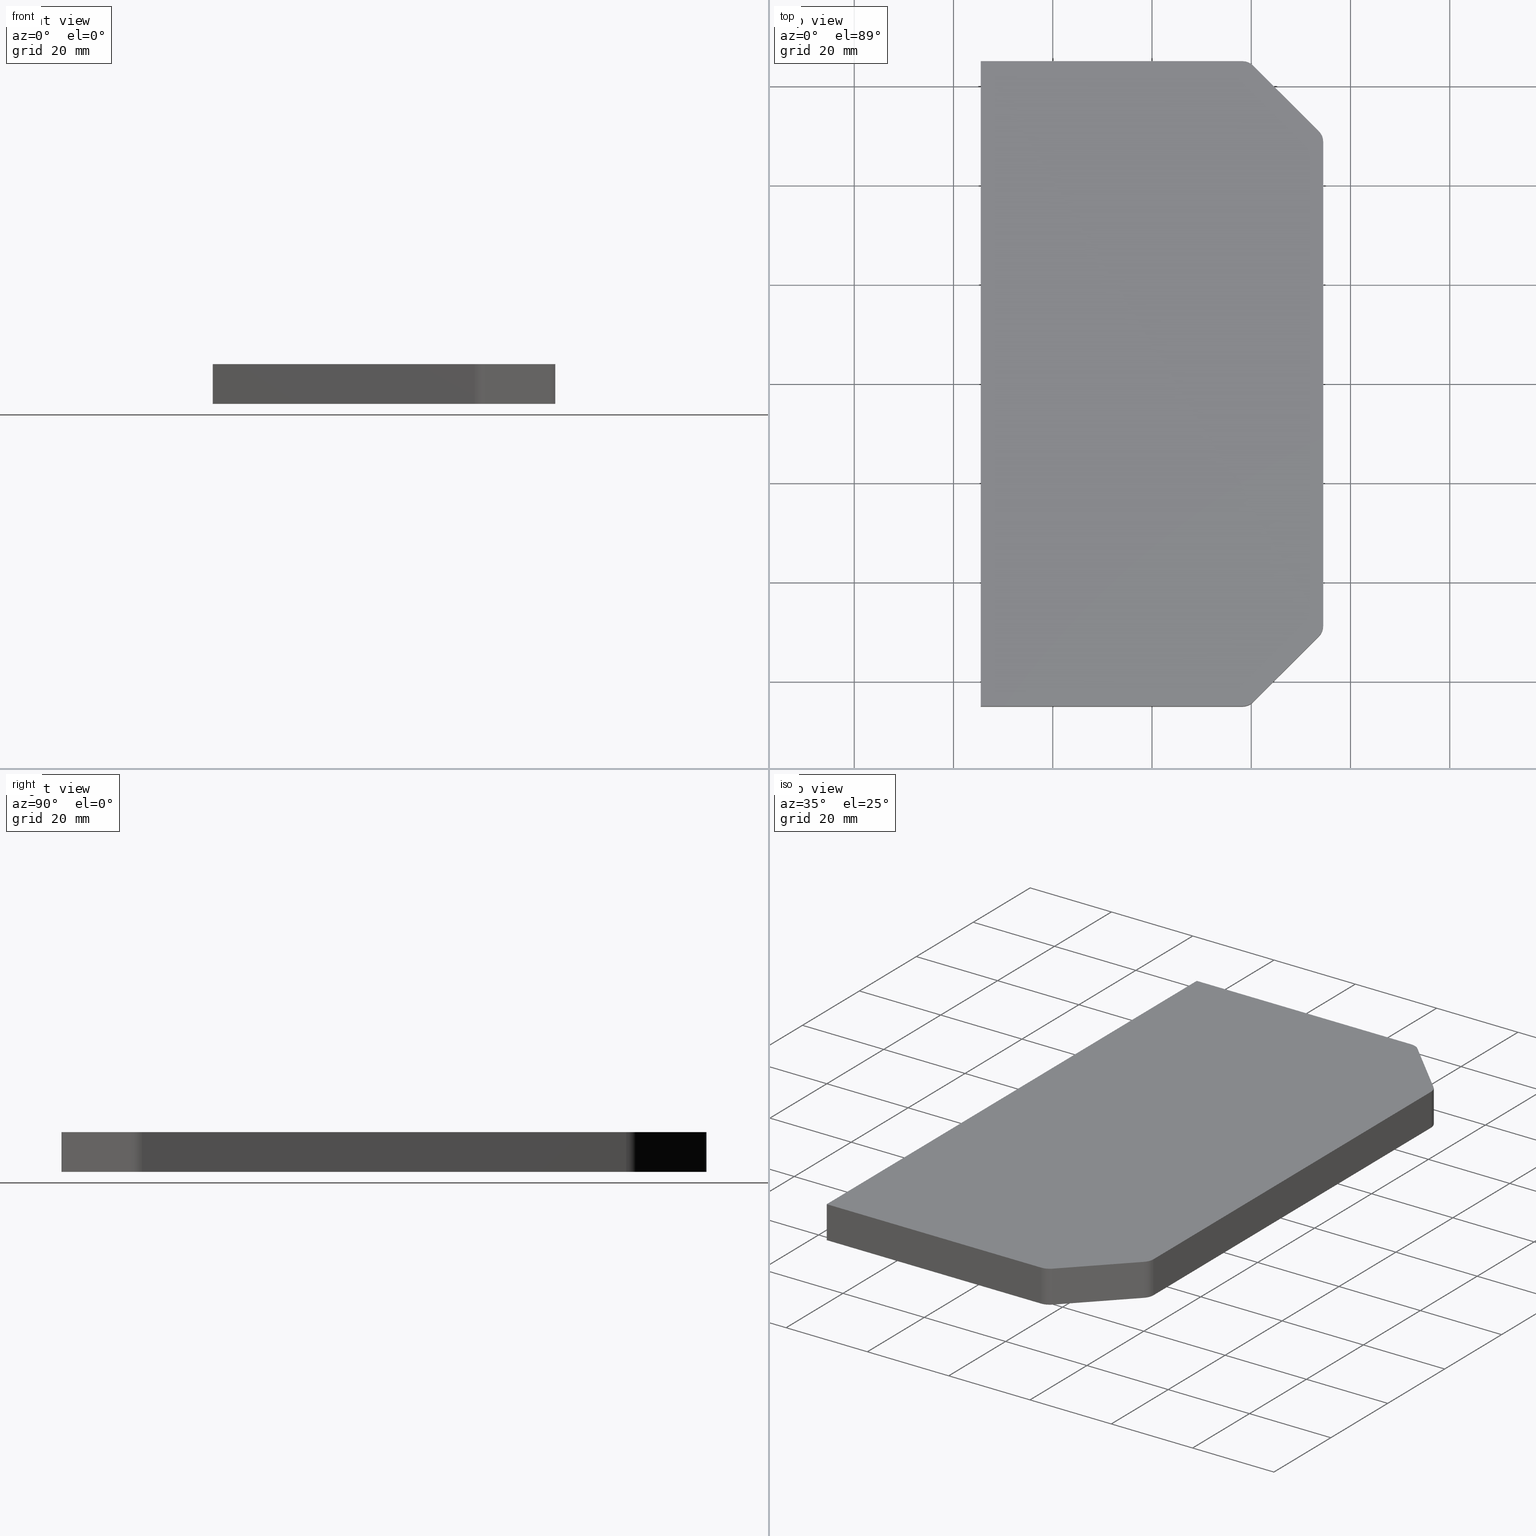
[diagram: canonical four-view strip — front | top / right | iso, engineering-drawing reading convention]
A machine part, canonical four-view strip (front | top / right | iso — engineering-drawing reading convention). The complete STEP part file that produces these views, byte-faithful:
ISO-10303-21;
HEADER;
FILE_DESCRIPTION (( 'STEP AP203' ),
    '1' );
FILE_NAME ('30-11_REV_.step',
    '2026-02-02T09:19:46',
    ( '' ),
    ( '' ),
    'SwSTEP 2.0',
    'SolidWorks 2025',
    '' );
FILE_SCHEMA (( 'CONFIG_CONTROL_DESIGN' ));
ENDSEC;

DATA;
#1 = PLANE ( 'NONE',  #228 ) ;
#2 = APPROVAL_DATE_TIME ( #170, #260 ) ;
#3 = EDGE_CURVE ( 'NONE', #163, #119, #382, .T. ) ;
#4 = DIRECTION ( 'NONE',  ( -0.000000000000000000, -0.000000000000000000, 1.000000000000000000 ) ) ;
#5 = DIRECTION ( 'NONE',  ( -0.7071067811865489050, 0.7071067811865462405, -0.000000000000000000 ) ) ;
#6 = DIRECTION ( 'NONE',  ( -0.7071067811865489050, 0.7071067811865462405, -0.000000000000000000 ) ) ;
#7 = CARTESIAN_POINT ( 'NONE',  ( 31.49999999999999289, -48.75735931288065217, -8.000000000000000000 ) ) ;
#8 = CARTESIAN_POINT ( 'NONE',  ( -34.50000000000000711, -65.00000000000001421, -8.000000000000000000 ) ) ;
#9 = ORIENTED_EDGE ( 'NONE', *, *, #16, .F. ) ;
#10 = EDGE_CURVE ( 'NONE', #239, #399, #309, .T. ) ;
#11 = CARTESIAN_POINT ( 'NONE',  ( 33.62132034355963839, 50.87867965644032608, 0.000000000000000000 ) ) ;
#12 = CARTESIAN_POINT ( 'NONE',  ( -34.50000000000000711, 64.99999999999998579, 0.000000000000000000 ) ) ;
#13 = EDGE_CURVE ( 'NONE', #416, #348, #178, .T. ) ;
#14 = DIRECTION ( 'NONE',  ( -0.000000000000000000, -0.000000000000000000, 1.000000000000000000 ) ) ;
#15 = VECTOR ( 'NONE', #96, 1000.000000000000000 ) ;
#16 = EDGE_CURVE ( 'NONE', #20, #131, #291, .T. ) ;
#17 = ORIENTED_EDGE ( 'NONE', *, *, #13, .F. ) ;
#18 = CYLINDRICAL_SURFACE ( 'NONE', #434, 2.999999999999999112 ) ;
#19 = DIRECTION ( 'NONE',  ( 1.000000000000000000, 0.000000000000000000, 0.000000000000000000 ) ) ;
#20 = VERTEX_POINT ( 'NONE', #288 ) ;
#21 = PRODUCT_DEFINITION_FORMATION_WITH_SPECIFIED_SOURCE ( 'ANY', '', #150, .NOT_KNOWN. ) ;
#22 = AXIS2_PLACEMENT_3D ( 'NONE', #249, #14, #358 ) ;
#23 = EDGE_LOOP ( 'NONE', ( #344, #387, #443, #409 ) ) ;
#24 = APPROVAL ( #84, 'UNSPECIFIED' ) ;
#25 = CARTESIAN_POINT ( 'NONE',  ( 33.62132034355964549, -50.87867965644029056, -8.000000000000000000 ) ) ;
#26 = LINE ( 'NONE', #225, #114 ) ;
#27 = FACE_OUTER_BOUND ( 'NONE', #100, .T. ) ;
#28 = ORIENTED_EDGE ( 'NONE', *, *, #406, .T. ) ;
#29 =( LENGTH_UNIT ( ) NAMED_UNIT ( * ) SI_UNIT ( .MILLI., .METRE. ) );
#30 = CARTESIAN_POINT ( 'NONE',  ( -34.50000000000000711, -65.00000000000001421, -8.000000000000000000 ) ) ;
#31 = AXIS2_PLACEMENT_3D ( 'NONE', #308, #142, #104 ) ;
#32 = EDGE_LOOP ( 'NONE', ( #160, #241, #224, #126 ) ) ;
#33 = EDGE_CURVE ( 'NONE', #297, #20, #70, .T. ) ;
#34 = ORIENTED_EDGE ( 'NONE', *, *, #233, .F. ) ;
#35 = VECTOR ( 'NONE', #5, 1000.000000000000000 ) ;
#36 = SECURITY_CLASSIFICATION_LEVEL ( 'unclassified' ) ;
#37 = CARTESIAN_POINT ( 'NONE',  ( 18.25735931288064506, 61.99999999999998579, -8.000000000000000000 ) ) ;
#38 = PERSON_AND_ORGANIZATION_ROLE ( 'creator' ) ;
#39 = DIRECTION ( 'NONE',  ( -1.000000000000000000, 0.000000000000000000, 0.000000000000000000 ) ) ;
#40 = EDGE_CURVE ( 'NONE', #399, #329, #313, .T. ) ;
#41 = CC_DESIGN_DATE_AND_TIME_ASSIGNMENT ( #99, #105, ( #362 ) ) ;
#42 = ORIENTED_EDGE ( 'NONE', *, *, #80, .T. ) ;
#43 = DIRECTION ( 'NONE',  ( -0.000000000000000000, 0.000000000000000000, 1.000000000000000000 ) ) ;
#44 = ORIENTED_EDGE ( 'NONE', *, *, #438, .T. ) ;
#45 = APPROVAL_ROLE ( '' ) ;
#46 = VECTOR ( 'NONE', #312, 1000.000000000000000 ) ;
#47 = CARTESIAN_POINT ( 'NONE',  ( 18.25735931288068059, -62.00000000000001421, -8.000000000000000000 ) ) ;
#48 = CC_DESIGN_DATE_AND_TIME_ASSIGNMENT ( #426, #392, ( #230 ) ) ;
#49 = COORDINATED_UNIVERSAL_TIME_OFFSET ( 10, 0, .AHEAD. ) ;
#50 = FACE_OUTER_BOUND ( 'NONE', #306, .T. ) ;
#51 = MANIFOLD_SOLID_BREP ( 'Fillet1', #349 ) ;
#52 = CC_DESIGN_PERSON_AND_ORGANIZATION_ASSIGNMENT ( #366, #38, ( #21 ) ) ;
#53 = VERTEX_POINT ( 'NONE', #315 ) ;
#54 = AXIS2_PLACEMENT_3D ( 'NONE', #393, #323, #19 ) ;
#55 = AXIS2_PLACEMENT_3D ( 'NONE', #319, #356, #286 ) ;
#56 = EDGE_LOOP ( 'NONE', ( #365, #227, #44, #108 ) ) ;
#57 = ORIENTED_EDGE ( 'NONE', *, *, #40, .F. ) ;
#58 = DIRECTION ( 'NONE',  ( -0.7071067811865462405, -0.7071067811865489050, 0.000000000000000000 ) ) ;
#59 = DIRECTION ( 'NONE',  ( -1.000000000000000000, 0.000000000000000000, -0.000000000000000000 ) ) ;
#60 = ORIENTED_EDGE ( 'NONE', *, *, #347, .F. ) ;
#61 = EDGE_CURVE ( 'NONE', #220, #206, #259, .T. ) ;
#62 = LINE ( 'NONE', #30, #15 ) ;
#63 = ORIENTED_EDGE ( 'NONE', *, *, #202, .T. ) ;
#64 = VECTOR ( 'NONE', #314, 1000.000000000000000 ) ;
#65 = CC_DESIGN_PERSON_AND_ORGANIZATION_ASSIGNMENT ( #69, #345, ( #362 ) ) ;
#66 = ORIENTED_EDGE ( 'NONE', *, *, #16, .T. ) ;
#67 = EDGE_LOOP ( 'NONE', ( #189, #183, #127, #237, #60, #430, #134, #73, #294, #214 ) ) ;
#68 = DESIGN_CONTEXT ( 'detailed design', #311, 'design' ) ;
#69 = PERSON_AND_ORGANIZATION ( #266, #137 ) ;
#70 = CIRCLE ( 'NONE', #22, 2.999999999999999112 ) ;
#71 = DIRECTION ( 'NONE',  ( 1.000000000000000000, 0.000000000000000000, 0.000000000000000000 ) ) ;
#72 = DIRECTION ( 'NONE',  ( 0.000000000000000000, 0.000000000000000000, -1.000000000000000000 ) ) ;
#73 = ORIENTED_EDGE ( 'NONE', *, *, #10, .T. ) ;
#74 = MECHANICAL_CONTEXT ( 'NONE', #385, 'mechanical' ) ;
#75 = DIRECTION ( 'NONE',  ( 0.000000000000000000, 1.000000000000000000, 0.000000000000000000 ) ) ;
#76 = ADVANCED_FACE ( 'NONE', ( #435 ), #332, .T. ) ;
#77 = LOCAL_TIME ( 20, 19, 46.00000000000000000, #197 ) ;
#78 = AXIS2_PLACEMENT_3D ( 'NONE', #47, #186, #388 ) ;
#79 = ORIENTED_EDGE ( 'NONE', *, *, #395, .T. ) ;
#80 = EDGE_CURVE ( 'NONE', #348, #350, #305, .T. ) ;
#81 = APPROVAL ( #138, 'UNSPECIFIED' ) ;
#82 = ORIENTED_EDGE ( 'NONE', *, *, #395, .F. ) ;
#83 = CYLINDRICAL_SURFACE ( 'NONE', #78, 2.999999999999999112 ) ;
#84 = APPROVAL_STATUS ( 'not_yet_approved' ) ;
#85 = CC_DESIGN_APPROVAL ( #260, ( #21 ) ) ;
#86 = ORIENTED_EDGE ( 'NONE', *, *, #80, .F. ) ;
#87 = CARTESIAN_POINT ( 'NONE',  ( 34.49999999999999289, -48.75735931288065217, -8.000000000000000000 ) ) ;
#88 = EDGE_CURVE ( 'NONE', #369, #131, #437, .T. ) ;
#89 = ORIENTED_EDGE ( 'NONE', *, *, #247, .F. ) ;
#90 = CARTESIAN_POINT ( 'NONE',  ( 34.49999999999999289, -65.00000000000001421, -8.000000000000000000 ) ) ;
#91 = EDGE_CURVE ( 'NONE', #338, #220, #200, .T. ) ;
#92 = ORIENTED_EDGE ( 'NONE', *, *, #3, .F. ) ;
#93 = CARTESIAN_POINT ( 'NONE',  ( -34.50000000000000711, -65.00000000000001421, -8.000000000000000000 ) ) ;
#94 = DIRECTION ( 'NONE',  ( -0.000000000000000000, -0.000000000000000000, 1.000000000000000000 ) ) ;
#95 = VECTOR ( 'NONE', #380, 1000.000000000000000 ) ;
#96 = DIRECTION ( 'NONE',  ( 0.000000000000000000, 0.000000000000000000, 1.000000000000000000 ) ) ;
#97 = VERTEX_POINT ( 'NONE', #400 ) ;
#98 = CC_DESIGN_PERSON_AND_ORGANIZATION_ASSIGNMENT ( #397, #302, ( #21 ) ) ;
#99 = DATE_AND_TIME ( #442, #281 ) ;
#100 = EDGE_LOOP ( 'NONE', ( #425, #149, #66, #337, #28, #63, #79, #112, #156, #373 ) ) ;
#101 = LINE ( 'NONE', #8, #216 ) ;
#102 = APPROVAL_PERSON_ORGANIZATION ( #432, #81, #411 ) ;
#103 = AXIS2_PLACEMENT_3D ( 'NONE', #271, #402, #229 ) ;
#104 = DIRECTION ( 'NONE',  ( -1.000000000000000000, 0.000000000000000000, 0.000000000000000000 ) ) ;
#105 = DATE_TIME_ROLE ( 'classification_date' ) ;
#106 = ADVANCED_FACE ( 'NONE', ( #269 ), #144, .F. ) ;
#107 = CARTESIAN_POINT ( 'NONE',  ( 19.49999999999996803, -65.00000000000001421, -8.000000000000000000 ) ) ;
#108 = ORIENTED_EDGE ( 'NONE', *, *, #233, .T. ) ;
#109 = LINE ( 'NONE', #280, #246 ) ;
#110 = APPROVAL_STATUS ( 'not_yet_approved' ) ;
#111 = VECTOR ( 'NONE', #390, 1000.000000000000000 ) ;
#112 = ORIENTED_EDGE ( 'NONE', *, *, #117, .T. ) ;
#113 = DIRECTION ( 'NONE',  ( 0.000000000000000000, 0.000000000000000000, -1.000000000000000000 ) ) ;
#114 = VECTOR ( 'NONE', #404, 1000.000000000000000 ) ;
#115 = AXIS2_PLACEMENT_3D ( 'NONE', #93, #192, #236 ) ;
#116 = DIRECTION ( 'NONE',  ( -1.000000000000000000, 0.000000000000000000, 0.000000000000000000 ) ) ;
#117 = EDGE_CURVE ( 'NONE', #350, #97, #255, .T. ) ;
#118 = LINE ( 'NONE', #293, #111 ) ;
#119 = VERTEX_POINT ( 'NONE', #11 ) ;
#120 = PERSON_AND_ORGANIZATION_ROLE ( 'design_owner' ) ;
#121 = LINE ( 'NONE', #152, #201 ) ;
#122 = ORIENTED_EDGE ( 'NONE', *, *, #135, .F. ) ;
#123 = FACE_OUTER_BOUND ( 'NONE', #32, .T. ) ;
#124 = CARTESIAN_POINT ( 'NONE',  ( -34.50000000000000711, 64.99999999999998579, -8.000000000000000000 ) ) ;
#125 = CARTESIAN_POINT ( 'NONE',  ( -34.50000000000000711, -65.00000000000001421, 0.000000000000000000 ) ) ;
#126 = ORIENTED_EDGE ( 'NONE', *, *, #372, .T. ) ;
#127 = ORIENTED_EDGE ( 'NONE', *, *, #61, .T. ) ;
#128 = DIRECTION ( 'NONE',  ( 0.000000000000000000, 0.000000000000000000, -1.000000000000000000 ) ) ;
#129 = AXIS2_PLACEMENT_3D ( 'NONE', #195, #58, #161 ) ;
#130 = CARTESIAN_POINT ( 'NONE',  ( 33.62132034355964549, -50.87867965644029056, 0.000000000000000000 ) ) ;
#131 = VERTEX_POINT ( 'NONE', #420 ) ;
#132 = DIRECTION ( 'NONE',  ( 0.000000000000000000, 1.000000000000000000, 0.000000000000000000 ) ) ;
#133 = DIRECTION ( 'NONE',  ( -0.000000000000000000, -1.000000000000000000, -0.000000000000000000 ) ) ;
#134 = ORIENTED_EDGE ( 'NONE', *, *, #429, .T. ) ;
#135 = EDGE_CURVE ( 'NONE', #20, #338, #109, .T. ) ;
#136 = CARTESIAN_POINT ( 'NONE',  ( 33.62132034355963839, 50.87867965644032608, -8.000000000000000000 ) ) ;
#137 = ORGANIZATION ( 'UNSPECIFIED', 'UNSPECIFIED', '' ) ;
#138 = APPROVAL_STATUS ( 'not_yet_approved' ) ;
#139 = LINE ( 'NONE', #274, #410 ) ;
#140 = LINE ( 'NONE', #413, #95 ) ;
#141 = ADVANCED_FACE ( 'NONE', ( #355 ), #316, .T. ) ;
#142 = DIRECTION ( 'NONE',  ( 0.000000000000000000, 0.000000000000000000, -1.000000000000000000 ) ) ;
#143 = DIRECTION ( 'NONE',  ( 1.000000000000000000, 0.000000000000000000, 0.000000000000000000 ) ) ;
#144 = PLANE ( 'NONE',  #208 ) ;
#145 = AXIS2_PLACEMENT_3D ( 'NONE', #147, #4, #242 ) ;
#146 = VERTEX_POINT ( 'NONE', #125 ) ;
#147 = CARTESIAN_POINT ( 'NONE',  ( 31.49999999999999289, 48.75735931288068059, 0.000000000000000000 ) ) ;
#148 = ADVANCED_FACE ( 'NONE', ( #50 ), #165, .T. ) ;
#149 = ORIENTED_EDGE ( 'NONE', *, *, #33, .T. ) ;
#150 = PRODUCT ( '30-11_REV_', '30-11_REV_', '', ( #74 ) ) ;
#151 = CARTESIAN_POINT ( 'NONE',  ( 31.49999999999999289, -48.75735931288065217, 0.000000000000000000 ) ) ;
#152 = CARTESIAN_POINT ( 'NONE',  ( -34.50000000000000711, -65.00000000000001421, 0.000000000000000000 ) ) ;
#153 = ORIENTED_EDGE ( 'NONE', *, *, #429, .F. ) ;
#154 = PLANE ( 'NONE',  #129 ) ;
#155 = APPROVAL_ROLE ( '' ) ;
#156 = ORIENTED_EDGE ( 'NONE', *, *, #168, .T. ) ;
#157 = CARTESIAN_POINT ( 'NONE',  ( 31.49999999999999289, 48.75735931288068059, -8.000000000000000000 ) ) ;
#158 = CARTESIAN_POINT ( 'NONE',  ( 18.25735931288068059, -65.00000000000001421, -8.000000000000000000 ) ) ;
#159 = AXIS2_PLACEMENT_3D ( 'NONE', #7, #113, #318 ) ;
#160 = ORIENTED_EDGE ( 'NONE', *, *, #61, .F. ) ;
#161 = DIRECTION ( 'NONE',  ( 0.000000000000000000, 0.000000000000000000, 1.000000000000000000 ) ) ;
#162 = DIRECTION ( 'NONE',  ( 1.000000000000000000, 0.000000000000000000, 0.000000000000000000 ) ) ;
#163 = VERTEX_POINT ( 'NONE', #320 ) ;
#164 = DIRECTION ( 'NONE',  ( 0.000000000000000000, 0.000000000000000000, 1.000000000000000000 ) ) ;
#165 = CYLINDRICAL_SURFACE ( 'NONE', #55, 3.000000000000002665 ) ;
#166 = DIRECTION ( 'NONE',  ( -1.000000000000000000, 0.000000000000000000, 0.000000000000000000 ) ) ;
#167 = VECTOR ( 'NONE', #164, 1000.000000000000000 ) ;
#168 = EDGE_CURVE ( 'NONE', #97, #163, #118, .T. ) ;
#169 = PLANE ( 'NONE',  #424 ) ;
#170 = DATE_AND_TIME ( #375, #370 ) ;
#171 = DIRECTION ( 'NONE',  ( 0.000000000000000000, 0.000000000000000000, -1.000000000000000000 ) ) ;
#172 = CC_DESIGN_APPROVAL ( #24, ( #230 ) ) ;
#173 = VECTOR ( 'NONE', #235, 1000.000000000000000 ) ;
#174 = VERTEX_POINT ( 'NONE', #219 ) ;
#175 = CARTESIAN_POINT ( 'NONE',  ( -34.50000000000000711, -65.00000000000001421, -8.000000000000000000 ) ) ;
#176 = ORIENTED_EDGE ( 'NONE', *, *, #372, .F. ) ;
#177 = PRODUCT_DEFINITION_SHAPE ( 'NONE', 'NONE',  #230 ) ;
#178 = CIRCLE ( 'NONE', #159, 2.999999999999999112 ) ;
#179 =( NAMED_UNIT ( * ) SI_UNIT ( $, .STERADIAN. ) SOLID_ANGLE_UNIT ( ) );
#180 = FACE_OUTER_BOUND ( 'NONE', #56, .T. ) ;
#181 = CC_DESIGN_PERSON_AND_ORGANIZATION_ASSIGNMENT ( #248, #120, ( #150 ) ) ;
#182 = DIRECTION ( 'NONE',  ( 0.7071067811865489050, -0.7071067811865462405, -0.000000000000000000 ) ) ;
#183 = ORIENTED_EDGE ( 'NONE', *, *, #91, .T. ) ;
#184 = APPROVAL_PERSON_ORGANIZATION ( #221, #24, #155 ) ;
#185 = AXIS2_PLACEMENT_3D ( 'NONE', #267, #94, #439 ) ;
#186 = DIRECTION ( 'NONE',  ( 0.000000000000000000, 0.000000000000000000, -1.000000000000000000 ) ) ;
#187 = ADVANCED_FACE ( 'NONE', ( #324 ), #394, .T. ) ;
#188 = CALENDAR_DATE ( 2026, 2, 2 ) ;
#189 = ORIENTED_EDGE ( 'NONE', *, *, #238, .F. ) ;
#190 = CALENDAR_DATE ( 2026, 2, 2 ) ;
#191 = DATE_AND_TIME ( #190, #300 ) ;
#192 = DIRECTION ( 'NONE',  ( 0.000000000000000000, -1.000000000000000000, 0.000000000000000000 ) ) ;
#193 = FACE_OUTER_BOUND ( 'NONE', #361, .T. ) ;
#194 = AXIS2_PLACEMENT_3D ( 'NONE', #151, #414, #39 ) ;
#195 = CARTESIAN_POINT ( 'NONE',  ( 34.49999999999999289, 49.99999999999997158, -8.000000000000000000 ) ) ;
#196 = ORIENTED_EDGE ( 'NONE', *, *, #117, .F. ) ;
#197 = COORDINATED_UNIVERSAL_TIME_OFFSET ( 10, 0, .AHEAD. ) ;
#198 = EDGE_LOOP ( 'NONE', ( #9, #396, #367, #234 ) ) ;
#199 =( GEOMETRIC_REPRESENTATION_CONTEXT ( 3 ) GLOBAL_UNCERTAINTY_ASSIGNED_CONTEXT ( ( #268 ) ) GLOBAL_UNIT_ASSIGNED_CONTEXT ( ( #29, #270, #179 ) ) REPRESENTATION_CONTEXT ( 'NONE', 'WORKASPACE' ) );
#200 = CIRCLE ( 'NONE', #398, 2.999999999999999112 ) ;
#201 = VECTOR ( 'NONE', #133, 1000.000000000000000 ) ;
#202 = EDGE_CURVE ( 'NONE', #329, #174, #282, .T. ) ;
#203 = ORIENTED_EDGE ( 'NONE', *, *, #10, .F. ) ;
#204 = ORIENTED_EDGE ( 'NONE', *, *, #222, .T. ) ;
#205 = FACE_OUTER_BOUND ( 'NONE', #198, .T. ) ;
#206 = VERTEX_POINT ( 'NONE', #136 ) ;
#207 = SHAPE_DEFINITION_REPRESENTATION ( #177, #328 ) ;
#208 = AXIS2_PLACEMENT_3D ( 'NONE', #107, #6, #43 ) ;
#209 = CALENDAR_DATE ( 2026, 2, 2 ) ;
#210 = DIRECTION ( 'NONE',  ( -1.000000000000000000, 0.000000000000000000, 0.000000000000000000 ) ) ;
#211 = LINE ( 'NONE', #352, #441 ) ;
#212 = CARTESIAN_POINT ( 'NONE',  ( 34.49999999999999289, 48.75735931288068059, -8.000000000000000000 ) ) ;
#213 = ORIENTED_EDGE ( 'NONE', *, *, #91, .F. ) ;
#214 = ORIENTED_EDGE ( 'NONE', *, *, #438, .F. ) ;
#215 = CIRCLE ( 'NONE', #264, 2.999999999999999112 ) ;
#216 = VECTOR ( 'NONE', #143, 1000.000000000000000 ) ;
#217 = CYLINDRICAL_SURFACE ( 'NONE', #54, 2.999999999999999112 ) ;
#218 = DIRECTION ( 'NONE',  ( -1.000000000000000000, -0.000000000000000000, -0.000000000000000000 ) ) ;
#219 = CARTESIAN_POINT ( 'NONE',  ( 20.37867965644033319, -64.12132034355964549, 0.000000000000000000 ) ) ;
#220 = VERTEX_POINT ( 'NONE', #436 ) ;
#221 = PERSON_AND_ORGANIZATION ( #266, #137 ) ;
#222 = EDGE_CURVE ( 'NONE', #174, #239, #139, .T. ) ;
#223 = APPROVAL_PERSON_ORGANIZATION ( #278, #260, #45 ) ;
#224 = ORIENTED_EDGE ( 'NONE', *, *, #292, .F. ) ;
#225 = CARTESIAN_POINT ( 'NONE',  ( 42.25000000000002132, -42.24999999999986500, -8.000000000000000000 ) ) ;
#226 = CARTESIAN_POINT ( 'NONE',  ( -34.50000000000000711, 64.99999999999998579, -8.000000000000000000 ) ) ;
#227 = ORIENTED_EDGE ( 'NONE', *, *, #88, .F. ) ;
#228 = AXIS2_PLACEMENT_3D ( 'NONE', #175, #210, #415 ) ;
#229 = DIRECTION ( 'NONE',  ( -1.000000000000000000, 0.000000000000000000, -0.000000000000000000 ) ) ;
#230 = PRODUCT_DEFINITION ( 'UNKNOWN', '', #21, #68 ) ;
#231 = CARTESIAN_POINT ( 'NONE',  ( 34.49999999999999289, -65.00000000000001421, -8.000000000000000000 ) ) ;
#232 = ORIENTED_EDGE ( 'NONE', *, *, #202, .F. ) ;
#233 = EDGE_CURVE ( 'NONE', #53, #146, #62, .T. ) ;
#234 = ORIENTED_EDGE ( 'NONE', *, *, #88, .T. ) ;
#235 = DIRECTION ( 'NONE',  ( -1.000000000000000000, -0.000000000000000000, -0.000000000000000000 ) ) ;
#236 = DIRECTION ( 'NONE',  ( 0.000000000000000000, -0.000000000000000000, -1.000000000000000000 ) ) ;
#237 = ORIENTED_EDGE ( 'NONE', *, *, #273, .T. ) ;
#238 = EDGE_CURVE ( 'NONE', #338, #369, #401, .T. ) ;
#239 = VERTEX_POINT ( 'NONE', #341 ) ;
#240 = CARTESIAN_POINT ( 'NONE',  ( 34.49999999999999289, 49.99999999999997158, 0.000000000000000000 ) ) ;
#241 = ORIENTED_EDGE ( 'NONE', *, *, #295, .T. ) ;
#242 = DIRECTION ( 'NONE',  ( -1.000000000000000000, 0.000000000000000000, 0.000000000000000000 ) ) ;
#243 = EDGE_CURVE ( 'NONE', #97, #416, #245, .T. ) ;
#244 = ORIENTED_EDGE ( 'NONE', *, *, #33, .F. ) ;
#245 = LINE ( 'NONE', #279, #46 ) ;
#246 = VECTOR ( 'NONE', #384, 1000.000000000000000 ) ;
#247 = EDGE_CURVE ( 'NONE', #284, #163, #383, .T. ) ;
#248 = PERSON_AND_ORGANIZATION ( #266, #137 ) ;
#249 = CARTESIAN_POINT ( 'NONE',  ( 18.25735931288064506, 61.99999999999998579, 0.000000000000000000 ) ) ;
#250 = EDGE_LOOP ( 'NONE', ( #203, #405, #232, #57 ) ) ;
#251 = EDGE_LOOP ( 'NONE', ( #153, #42, #82, #204 ) ) ;
#252 = ORIENTED_EDGE ( 'NONE', *, *, #40, .T. ) ;
#253 = FACE_OUTER_BOUND ( 'NONE', #325, .T. ) ;
#254 = CC_DESIGN_APPROVAL ( #81, ( #362 ) ) ;
#255 = CIRCLE ( 'NONE', #194, 2.999999999999999112 ) ;
#256 = COORDINATED_UNIVERSAL_TIME_OFFSET ( 10, 0, .AHEAD. ) ;
#257 = EDGE_LOOP ( 'NONE', ( #433, #252, #287, #34 ) ) ;
#258 = LINE ( 'NONE', #231, #296 ) ;
#259 = LINE ( 'NONE', #417, #440 ) ;
#260 = APPROVAL ( #110, 'UNSPECIFIED' ) ;
#261 = LINE ( 'NONE', #364, #277 ) ;
#262 = CARTESIAN_POINT ( 'NONE',  ( 18.25735931288068059, -65.00000000000001421, 0.000000000000000000 ) ) ;
#263 = DIRECTION ( 'NONE',  ( -0.000000000000000000, -1.000000000000000000, -0.000000000000000000 ) ) ;
#264 = AXIS2_PLACEMENT_3D ( 'NONE', #354, #419, #379 ) ;
#265 = CARTESIAN_POINT ( 'NONE',  ( 33.62132034355963839, -50.87867965644029056, -8.000000000000000000 ) ) ;
#266 = PERSON ( 'UNSPECIFIED', 'UNSPECIFIED', 'UNSPECIFIED', ('UNSPECIFIED'), ('UNSPECIFIED'), ('UNSPECIFIED') ) ;
#267 = CARTESIAN_POINT ( 'NONE',  ( 18.25735931288068059, -62.00000000000001421, 0.000000000000000000 ) ) ;
#268 = UNCERTAINTY_MEASURE_WITH_UNIT (LENGTH_MEASURE( 1.000000000000000082E-05 ), #29, 'distance_accuracy_value', 'NONE');
#269 = FACE_OUTER_BOUND ( 'NONE', #251, .T. ) ;
#270 =( NAMED_UNIT ( * ) PLANE_ANGLE_UNIT ( ) SI_UNIT ( $, .RADIAN. ) );
#271 = CARTESIAN_POINT ( 'NONE',  ( 0.000000000000000000, 0.000000000000000000, 0.000000000000000000 ) ) ;
#272 = CARTESIAN_POINT ( 'NONE',  ( 33.62132034355963839, 50.87867965644032608, -8.000000000000000000 ) ) ;
#273 = EDGE_CURVE ( 'NONE', #206, #284, #215, .T. ) ;
#274 = CARTESIAN_POINT ( 'NONE',  ( 20.37867965644033319, -64.12132034355964549, -8.000000000000000000 ) ) ;
#275 = COORDINATED_UNIVERSAL_TIME_OFFSET ( 10, 0, .AHEAD. ) ;
#276 = LINE ( 'NONE', #240, #35 ) ;
#277 = VECTOR ( 'NONE', #263, 1000.000000000000000 ) ;
#278 = PERSON_AND_ORGANIZATION ( #266, #137 ) ;
#279 = CARTESIAN_POINT ( 'NONE',  ( 34.49999999999999289, -48.75735931288065217, -8.000000000000000000 ) ) ;
#280 = CARTESIAN_POINT ( 'NONE',  ( 18.25735931288064506, 64.99999999999998579, -8.000000000000000000 ) ) ;
#281 = LOCAL_TIME ( 20, 19, 46.00000000000000000, #275 ) ;
#282 = CIRCLE ( 'NONE', #185, 2.999999999999999112 ) ;
#283 = CARTESIAN_POINT ( 'NONE',  ( 0.000000000000000000, 0.000000000000000000, -8.000000000000000000 ) ) ;
#284 = VERTEX_POINT ( 'NONE', #346 ) ;
#285 = DIRECTION ( 'NONE',  ( 1.000000000000000000, 0.000000000000000000, 0.000000000000000000 ) ) ;
#286 = DIRECTION ( 'NONE',  ( 1.000000000000000000, 0.000000000000000000, 0.000000000000000000 ) ) ;
#287 = ORIENTED_EDGE ( 'NONE', *, *, #406, .F. ) ;
#288 = CARTESIAN_POINT ( 'NONE',  ( 18.25735931288064506, 64.99999999999998579, 0.000000000000000000 ) ) ;
#289 = CARTESIAN_POINT ( 'NONE',  ( 20.37867965644027990, 64.12132034355963128, 0.000000000000000000 ) ) ;
#290 = PERSON_AND_ORGANIZATION_ROLE ( 'creator' ) ;
#291 = LINE ( 'NONE', #12, #339 ) ;
#292 = EDGE_CURVE ( 'NONE', #119, #297, #276, .T. ) ;
#293 = CARTESIAN_POINT ( 'NONE',  ( 34.49999999999999289, -65.00000000000001421, 0.000000000000000000 ) ) ;
#294 = ORIENTED_EDGE ( 'NONE', *, *, #403, .F. ) ;
#295 = EDGE_CURVE ( 'NONE', #220, #297, #412, .T. ) ;
#296 = VECTOR ( 'NONE', #132, 1000.000000000000000 ) ;
#297 = VERTEX_POINT ( 'NONE', #289 ) ;
#298 = ORIENTED_EDGE ( 'NONE', *, *, #243, .F. ) ;
#299 = ORIENTED_EDGE ( 'NONE', *, *, #273, .F. ) ;
#300 = LOCAL_TIME ( 20, 19, 46.00000000000000000, #256 ) ;
#301 = VECTOR ( 'NONE', #342, 1000.000000000000000 ) ;
#302 = PERSON_AND_ORGANIZATION_ROLE ( 'design_supplier' ) ;
#303 = CARTESIAN_POINT ( 'NONE',  ( 0.000000000000000000, 0.000000000000000000, 0.000000000000000000 ) ) ;
#304 = DIRECTION ( 'NONE',  ( 0.000000000000000000, -0.000000000000000000, 1.000000000000000000 ) ) ;
#305 = LINE ( 'NONE', #25, #301 ) ;
#306 = EDGE_LOOP ( 'NONE', ( #196, #86, #17, #298 ) ) ;
#307 = CARTESIAN_POINT ( 'NONE',  ( 18.25735931288068059, -65.00000000000001421, -8.000000000000000000 ) ) ;
#308 = CARTESIAN_POINT ( 'NONE',  ( 18.25735931288068059, -62.00000000000001421, -8.000000000000000000 ) ) ;
#309 = CIRCLE ( 'NONE', #31, 2.999999999999999112 ) ;
#310 = CARTESIAN_POINT ( 'NONE',  ( 20.37867965644028700, 64.12132034355963128, -8.000000000000000000 ) ) ;
#311 = APPLICATION_CONTEXT ( 'configuration controlled 3d designs of mechanical parts and assemblies' ) ;
#312 = DIRECTION ( 'NONE',  ( -0.000000000000000000, -0.000000000000000000, -1.000000000000000000 ) ) ;
#313 = LINE ( 'NONE', #158, #326 ) ;
#314 = DIRECTION ( 'NONE',  ( -0.000000000000000000, -0.000000000000000000, 1.000000000000000000 ) ) ;
#315 = CARTESIAN_POINT ( 'NONE',  ( -34.50000000000000711, -65.00000000000001421, -8.000000000000000000 ) ) ;
#316 = PLANE ( 'NONE',  #418 ) ;
#317 = VECTOR ( 'NONE', #360, 1000.000000000000000 ) ;
#318 = DIRECTION ( 'NONE',  ( -1.000000000000000000, 0.000000000000000000, 0.000000000000000000 ) ) ;
#319 = CARTESIAN_POINT ( 'NONE',  ( 31.49999999999999289, -48.75735931288065217, -8.000000000000000000 ) ) ;
#320 = CARTESIAN_POINT ( 'NONE',  ( 34.49999999999999289, 48.75735931288068059, 0.000000000000000000 ) ) ;
#321 = PERSON_AND_ORGANIZATION ( #266, #137 ) ;
#322 = ADVANCED_FACE ( 'NONE', ( #123 ), #154, .F. ) ;
#323 = DIRECTION ( 'NONE',  ( 0.000000000000000000, 0.000000000000000000, 1.000000000000000000 ) ) ;
#324 = FACE_OUTER_BOUND ( 'NONE', #23, .T. ) ;
#325 = EDGE_LOOP ( 'NONE', ( #299, #176, #92, #89 ) ) ;
#326 = VECTOR ( 'NONE', #427, 1000.000000000000000 ) ;
#327 = CC_DESIGN_PERSON_AND_ORGANIZATION_ASSIGNMENT ( #321, #290, ( #230 ) ) ;
#328 = ADVANCED_BREP_SHAPE_REPRESENTATION ( '30-11_REV_', ( #51, #377 ), #199 ) ;
#329 = VERTEX_POINT ( 'NONE', #262 ) ;
#330 = ADVANCED_FACE ( 'NONE', ( #253 ), #18, .T. ) ;
#331 = APPROVAL_DATE_TIME ( #408, #81 ) ;
#332 = PLANE ( 'NONE',  #115 ) ;
#333 = PLANE ( 'NONE',  #103 ) ;
#334 = PRODUCT_RELATED_PRODUCT_CATEGORY ( 'detail', '', ( #150 ) ) ;
#335 = LOCAL_TIME ( 20, 19, 46.00000000000000000, #49 ) ;
#336 = ADVANCED_FACE ( 'NONE', ( #386 ), #83, .T. ) ;
#337 = ORIENTED_EDGE ( 'NONE', *, *, #428, .T. ) ;
#338 = VERTEX_POINT ( 'NONE', #359 ) ;
#339 = VECTOR ( 'NONE', #218, 1000.000000000000000 ) ;
#340 = COORDINATED_UNIVERSAL_TIME_OFFSET ( 10, 0, .AHEAD. ) ;
#341 = CARTESIAN_POINT ( 'NONE',  ( 20.37867965644032608, -64.12132034355964549, -8.000000000000000000 ) ) ;
#342 = DIRECTION ( 'NONE',  ( -0.000000000000000000, 0.000000000000000000, 1.000000000000000000 ) ) ;
#343 = APPLICATION_PROTOCOL_DEFINITION ( 'international standard', 'config_control_design', 1994, #385 ) ;
#344 = ORIENTED_EDGE ( 'NONE', *, *, #347, .T. ) ;
#345 = PERSON_AND_ORGANIZATION_ROLE ( 'classification_officer' ) ;
#346 = CARTESIAN_POINT ( 'NONE',  ( 34.49999999999999289, 48.75735931288068059, -8.000000000000000000 ) ) ;
#347 = EDGE_CURVE ( 'NONE', #416, #284, #258, .T. ) ;
#348 = VERTEX_POINT ( 'NONE', #265 ) ;
#349 = CLOSED_SHELL ( 'NONE', ( #187, #76, #389, #378, #141, #353, #106, #322, #422, #330, #148, #336 ) ) ;
#350 = VERTEX_POINT ( 'NONE', #130 ) ;
#351 = APPROVAL_DATE_TIME ( #191, #24 ) ;
#352 = CARTESIAN_POINT ( 'NONE',  ( -34.50000000000000711, -65.00000000000001421, 0.000000000000000000 ) ) ;
#353 = ADVANCED_FACE ( 'NONE', ( #27 ), #333, .F. ) ;
#354 = CARTESIAN_POINT ( 'NONE',  ( 31.49999999999999289, 48.75735931288068059, -8.000000000000000000 ) ) ;
#355 = FACE_OUTER_BOUND ( 'NONE', #67, .T. ) ;
#356 = DIRECTION ( 'NONE',  ( 0.000000000000000000, 0.000000000000000000, 1.000000000000000000 ) ) ;
#357 = VECTOR ( 'NONE', #374, 1000.000000000000000 ) ;
#358 = DIRECTION ( 'NONE',  ( -1.000000000000000000, 0.000000000000000000, 0.000000000000000000 ) ) ;
#359 = CARTESIAN_POINT ( 'NONE',  ( 18.25735931288064506, 64.99999999999998579, -8.000000000000000000 ) ) ;
#360 = DIRECTION ( 'NONE',  ( -0.000000000000000000, -0.000000000000000000, 1.000000000000000000 ) ) ;
#361 = EDGE_LOOP ( 'NONE', ( #244, #391, #213, #122 ) ) ;
#362 = SECURITY_CLASSIFICATION ( '', '', #36 ) ;
#363 = AXIS2_PLACEMENT_3D ( 'NONE', #90, #162, #171 ) ;
#364 = CARTESIAN_POINT ( 'NONE',  ( -34.50000000000000711, -65.00000000000001421, -8.000000000000000000 ) ) ;
#365 = ORIENTED_EDGE ( 'NONE', *, *, #428, .F. ) ;
#366 = PERSON_AND_ORGANIZATION ( #266, #137 ) ;
#367 = ORIENTED_EDGE ( 'NONE', *, *, #238, .T. ) ;
#368 = DIRECTION ( 'NONE',  ( -0.000000000000000000, -0.000000000000000000, -1.000000000000000000 ) ) ;
#369 = VERTEX_POINT ( 'NONE', #371 ) ;
#370 = LOCAL_TIME ( 20, 19, 46.00000000000000000, #340 ) ;
#371 = CARTESIAN_POINT ( 'NONE',  ( -34.50000000000000711, 64.99999999999998579, -8.000000000000000000 ) ) ;
#372 = EDGE_CURVE ( 'NONE', #119, #206, #431, .T. ) ;
#373 = ORIENTED_EDGE ( 'NONE', *, *, #3, .T. ) ;
#374 = DIRECTION ( 'NONE',  ( -0.000000000000000000, -0.000000000000000000, -1.000000000000000000 ) ) ;
#375 = CALENDAR_DATE ( 2026, 2, 2 ) ;
#376 = DIRECTION ( 'NONE',  ( 0.000000000000000000, 0.000000000000000000, 1.000000000000000000 ) ) ;
#377 = AXIS2_PLACEMENT_3D ( 'NONE', #303, #376, #71 ) ;
#378 = ADVANCED_FACE ( 'NONE', ( #205 ), #169, .T. ) ;
#379 = DIRECTION ( 'NONE',  ( -1.000000000000000000, 0.000000000000000000, 0.000000000000000000 ) ) ;
#380 = DIRECTION ( 'NONE',  ( 0.7071067811865462405, 0.7071067811865489050, -0.000000000000000000 ) ) ;
#381 = CC_DESIGN_SECURITY_CLASSIFICATION ( #362, ( #21 ) ) ;
#382 = CIRCLE ( 'NONE', #145, 2.999999999999999112 ) ;
#383 = LINE ( 'NONE', #212, #64 ) ;
#384 = DIRECTION ( 'NONE',  ( -0.000000000000000000, 0.000000000000000000, -1.000000000000000000 ) ) ;
#385 = APPLICATION_CONTEXT ( 'configuration controlled 3d designs of mechanical parts and assemblies' ) ;
#386 = FACE_OUTER_BOUND ( 'NONE', #250, .T. ) ;
#387 = ORIENTED_EDGE ( 'NONE', *, *, #247, .T. ) ;
#388 = DIRECTION ( 'NONE',  ( -1.000000000000000000, 0.000000000000000000, 0.000000000000000000 ) ) ;
#389 = ADVANCED_FACE ( 'NONE', ( #180 ), #1, .T. ) ;
#390 = DIRECTION ( 'NONE',  ( 0.000000000000000000, 1.000000000000000000, 0.000000000000000000 ) ) ;
#391 = ORIENTED_EDGE ( 'NONE', *, *, #295, .F. ) ;
#392 = DATE_TIME_ROLE ( 'creation_date' ) ;
#393 = CARTESIAN_POINT ( 'NONE',  ( 18.25735931288064506, 61.99999999999998579, -8.000000000000000000 ) ) ;
#394 = PLANE ( 'NONE',  #363 ) ;
#395 = EDGE_CURVE ( 'NONE', #174, #350, #140, .T. ) ;
#396 = ORIENTED_EDGE ( 'NONE', *, *, #135, .T. ) ;
#397 = PERSON_AND_ORGANIZATION ( #266, #137 ) ;
#398 = AXIS2_PLACEMENT_3D ( 'NONE', #37, #128, #166 ) ;
#399 = VERTEX_POINT ( 'NONE', #307 ) ;
#400 = CARTESIAN_POINT ( 'NONE',  ( 34.49999999999999289, -48.75735931288065217, 0.000000000000000000 ) ) ;
#401 = LINE ( 'NONE', #226, #173 ) ;
#402 = DIRECTION ( 'NONE',  ( 0.000000000000000000, 0.000000000000000000, -1.000000000000000000 ) ) ;
#403 = EDGE_CURVE ( 'NONE', #53, #399, #101, .T. ) ;
#404 = DIRECTION ( 'NONE',  ( -0.7071067811865462405, -0.7071067811865489050, -0.000000000000000000 ) ) ;
#405 = ORIENTED_EDGE ( 'NONE', *, *, #222, .F. ) ;
#406 = EDGE_CURVE ( 'NONE', #146, #329, #211, .T. ) ;
#407 = CARTESIAN_POINT ( 'NONE',  ( -34.50000000000000711, 64.99999999999998579, -8.000000000000000000 ) ) ;
#408 = DATE_AND_TIME ( #209, #77 ) ;
#409 = ORIENTED_EDGE ( 'NONE', *, *, #243, .T. ) ;
#410 = VECTOR ( 'NONE', #368, 1000.000000000000000 ) ;
#411 = APPROVAL_ROLE ( '' ) ;
#412 = LINE ( 'NONE', #310, #317 ) ;
#413 = CARTESIAN_POINT ( 'NONE',  ( 19.49999999999996803, -65.00000000000001421, 0.000000000000000000 ) ) ;
#414 = DIRECTION ( 'NONE',  ( -0.000000000000000000, -0.000000000000000000, 1.000000000000000000 ) ) ;
#415 = DIRECTION ( 'NONE',  ( 0.000000000000000000, 0.000000000000000000, 1.000000000000000000 ) ) ;
#416 = VERTEX_POINT ( 'NONE', #87 ) ;
#417 = CARTESIAN_POINT ( 'NONE',  ( 42.24999999999992184, 42.25000000000007816, -8.000000000000000000 ) ) ;
#418 = AXIS2_PLACEMENT_3D ( 'NONE', #283, #72, #59 ) ;
#419 = DIRECTION ( 'NONE',  ( 0.000000000000000000, 0.000000000000000000, -1.000000000000000000 ) ) ;
#420 = CARTESIAN_POINT ( 'NONE',  ( -34.50000000000000711, 64.99999999999998579, 0.000000000000000000 ) ) ;
#421 = DIRECTION ( 'NONE',  ( 0.000000000000000000, 0.000000000000000000, -1.000000000000000000 ) ) ;
#422 = ADVANCED_FACE ( 'NONE', ( #193 ), #217, .T. ) ;
#423 = APPLICATION_PROTOCOL_DEFINITION ( 'international standard', 'config_control_design', 1994, #311 ) ;
#424 = AXIS2_PLACEMENT_3D ( 'NONE', #407, #75, #304 ) ;
#425 = ORIENTED_EDGE ( 'NONE', *, *, #292, .T. ) ;
#426 = DATE_AND_TIME ( #188, #335 ) ;
#427 = DIRECTION ( 'NONE',  ( -0.000000000000000000, -0.000000000000000000, 1.000000000000000000 ) ) ;
#428 = EDGE_CURVE ( 'NONE', #131, #146, #121, .T. ) ;
#429 = EDGE_CURVE ( 'NONE', #348, #239, #26, .T. ) ;
#430 = ORIENTED_EDGE ( 'NONE', *, *, #13, .T. ) ;
#431 = LINE ( 'NONE', #272, #357 ) ;
#432 = PERSON_AND_ORGANIZATION ( #266, #137 ) ;
#433 = ORIENTED_EDGE ( 'NONE', *, *, #403, .T. ) ;
#434 = AXIS2_PLACEMENT_3D ( 'NONE', #157, #421, #116 ) ;
#435 = FACE_OUTER_BOUND ( 'NONE', #257, .T. ) ;
#436 = CARTESIAN_POINT ( 'NONE',  ( 20.37867965644027990, 64.12132034355963128, -8.000000000000000000 ) ) ;
#437 = LINE ( 'NONE', #124, #167 ) ;
#438 = EDGE_CURVE ( 'NONE', #369, #53, #261, .T. ) ;
#439 = DIRECTION ( 'NONE',  ( -1.000000000000000000, 0.000000000000000000, 0.000000000000000000 ) ) ;
#440 = VECTOR ( 'NONE', #182, 1000.000000000000000 ) ;
#441 = VECTOR ( 'NONE', #285, 1000.000000000000000 ) ;
#442 = CALENDAR_DATE ( 2026, 2, 2 ) ;
#443 = ORIENTED_EDGE ( 'NONE', *, *, #168, .F. ) ;
ENDSEC;
END-ISO-10303-21;
